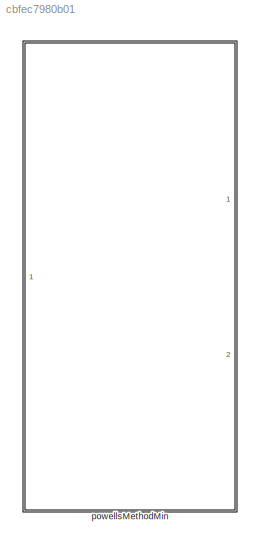
MODEL slx_cbfec7980b01
KIND library
CONFIG AbsTol = auto
CONFIG EnableMultiTasking = off
CONFIG FixedStep = auto
CONFIG MaxStep = auto
CONFIG MinStep = auto
CONFIG RelTol = 1e-3
CONFIG SampleTimeConstraint = Unconstrained
CONFIG Solver = VariableStepAuto
CONFIG SolverName = VariableStepAuto
CONFIG StartTime = 0.0
CONFIG StopTime = 10.0
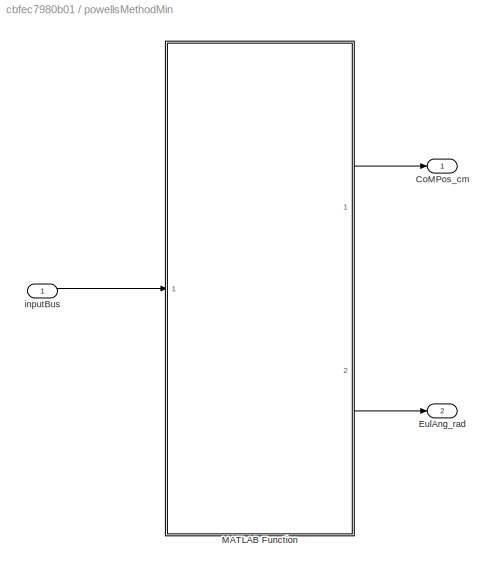
BLOCK [SubSystem] powellsMethodMin
  Ports = [1, 2]
  RequestExecContextInheritance = off
BLOCK [Outport] powellsMethodMin/CoMPos_cm
  IconDisplay = Port number
BLOCK [Outport] powellsMethodMin/EulAng_rad
  IconDisplay = Port number
  Port = 2
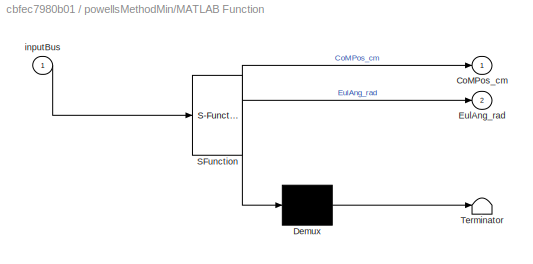
BLOCK [SubSystem] powellsMethodMin/MATLAB Function
  ErrorFcn = Stateflow.Translate.translate
  PermitHierarchicalResolution = ExplicitOnly
  Ports = [1, 2]
  RequestExecContextInheritance = off
  SFBlockType = MATLAB Function
  TreatAsAtomicUnit = on
BLOCK [Demux] powellsMethodMin/MATLAB Function/ Demux 
  Outputs = 1
  Ports = [1, 1]
BLOCK [S-Function] powellsMethodMin/MATLAB Function/ SFunction 
  EnableBusSupport = off
  FunctionName = sf_sfun
  Parameters = initialEulerAngles_rad,snells
  PortCounts = [1 3]
  Ports = [1, 3]
  SFcnIsStateOwnerBlock = off
  SFunctionDeploymentMode = off
  Tag = Stateflow S-Function powellsMethodMin_ul 2
BLOCK [Terminator] powellsMethodMin/MATLAB Function/ Terminator 
BLOCK [Outport] powellsMethodMin/MATLAB Function/CoMPos_cm
  IconDisplay = Port number
BLOCK [Outport] powellsMethodMin/MATLAB Function/EulAng_rad
  IconDisplay = Port number
  Port = 2
BLOCK [Inport] powellsMethodMin/MATLAB Function/inputBus
  IconDisplay = Port number
BLOCK [Inport] powellsMethodMin/inputBus
  IconDisplay = Port number
LINE powellsMethodMin/MATLAB Function:1 -> powellsMethodMin/CoMPos_cm:1
LINE powellsMethodMin/MATLAB Function:2 -> powellsMethodMin/EulAng_rad:1
LINE powellsMethodMin/inputBus:1 -> powellsMethodMin/MATLAB Function:1
CHART powellsMethodMin/MATLAB Function states=1 transitions=1
  STATE_LABEL 'eML_blk_kernel()'
  STATE_LABEL 'SCRIPT:\nfunction [CoMPos_cm,EulAng_rad] = powellsMethodMin(inputBus,...\n    snells,initialEulerAngles_rad)\n\n[CoMPos_cm,EulAng_rad] = powellsMethodMin(initialEulerAngles_rad,...\n    inputBus,snells);\n'
